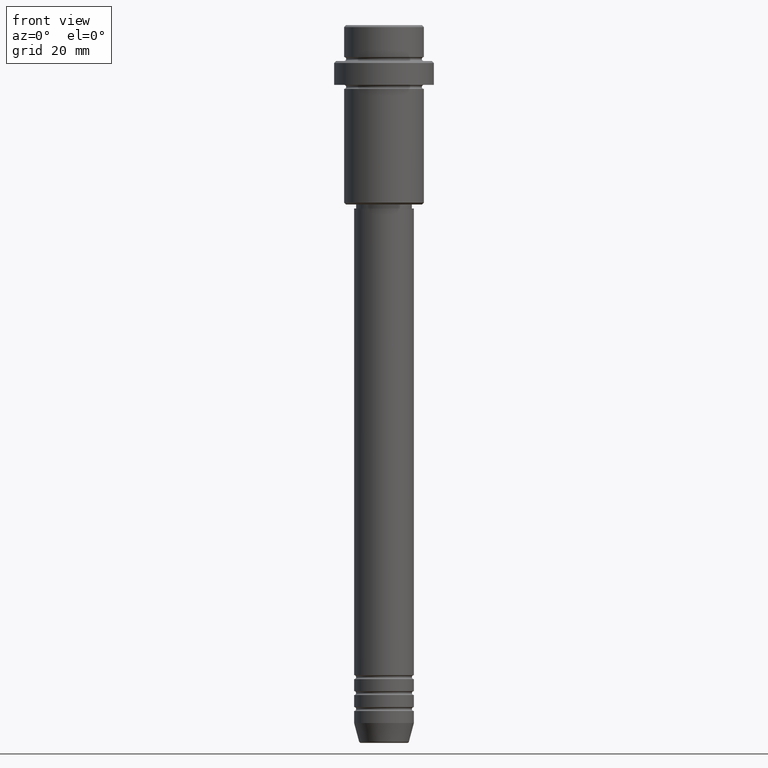
[diagram: clean part render]
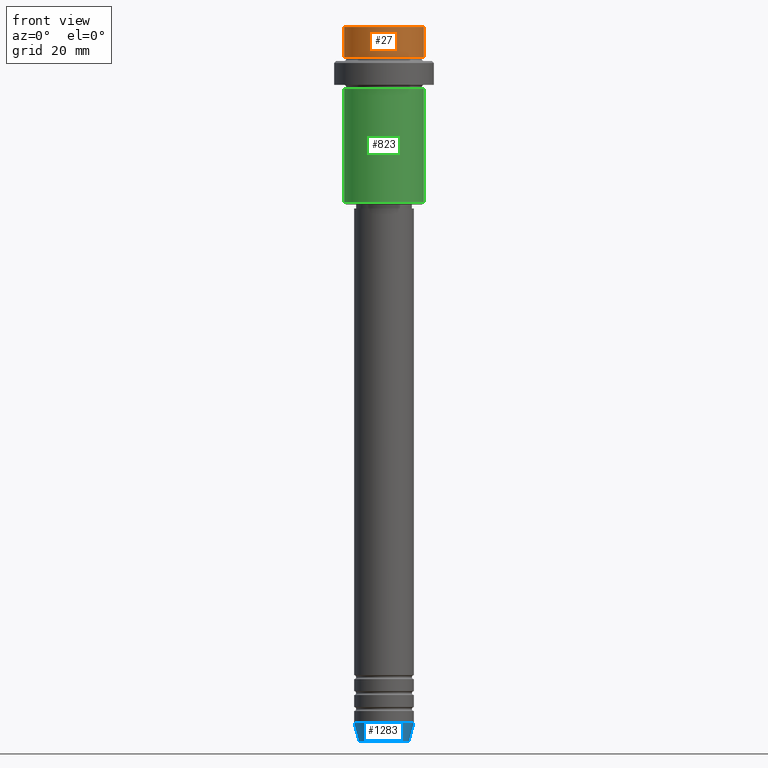
[diagram: same view with three faces highlighted in distinct colors, each labeled with its STEP entity id]
A machine part, front view with three faces highlighted in distinct colors.
Their STEP definitions:

[orange] entity #27 — the highlighted cylindrical surface (partial cylindrical patch) has radius 10 mm, axis along (-0, -0, 1).
#14 = VERTEX_POINT ( 'NONE', #324 ) ;
#27 = ADVANCED_FACE ( 'NONE', ( #239 ), #1329, .T. ) ;
#64 = CARTESIAN_POINT ( 'NONE',  ( -9.999999999999998224, 1.224646799147353059E-15, 0.000000000000000000 ) ) ;
#78 = VERTEX_POINT ( 'NONE', #889 ) ;
#196 = VECTOR ( 'NONE', #279, 1000.000000000000000 ) ;
#206 = VERTEX_POINT ( 'NONE', #568 ) ;
#219 = DIRECTION ( 'NONE',  ( -0.000000000000000000, -0.000000000000000000, 1.000000000000000000 ) ) ;
#239 = FACE_OUTER_BOUND ( 'NONE', #1240, .T. ) ;
#279 = DIRECTION ( 'NONE',  ( -0.000000000000000000, -0.000000000000000000, 1.000000000000000000 ) ) ;
#324 = CARTESIAN_POINT ( 'NONE',  ( 9.999999999999998224, 0.000000000000000000, -7.999999999999998224 ) ) ;
#395 = CARTESIAN_POINT ( 'NONE',  ( 0.000000000000000000, 0.000000000000000000, -7.999999999999998224 ) ) ;
#430 = EDGE_CURVE ( 'NONE', #465, #78, #854, .T. ) ;
#442 = CARTESIAN_POINT ( 'NONE',  ( 0.000000000000000000, 0.000000000000000000, 0.000000000000000000 ) ) ;
#465 = VERTEX_POINT ( 'NONE', #548 ) ;
#496 = LINE ( 'NONE', #1036, #692 ) ;
#548 = CARTESIAN_POINT ( 'NONE',  ( 9.999999999999998224, 0.000000000000000000, -0.4999999999999970024 ) ) ;
#550 = AXIS2_PLACEMENT_3D ( 'NONE', #442, #219, #672 ) ;
#568 = CARTESIAN_POINT ( 'NONE',  ( -9.999999999999998224, 1.224646799147353059E-15, -7.999999999999998224 ) ) ;
#601 = DIRECTION ( 'NONE',  ( 1.000000000000000000, 0.000000000000000000, 0.000000000000000000 ) ) ;
#650 = EDGE_CURVE ( 'NONE', #206, #78, #1180, .T. ) ;
#670 = DIRECTION ( 'NONE',  ( 1.000000000000000000, 0.000000000000000000, 0.000000000000000000 ) ) ;
#672 = DIRECTION ( 'NONE',  ( 1.000000000000000000, 0.000000000000000000, 0.000000000000000000 ) ) ;
#692 = VECTOR ( 'NONE', #1044, 1000.000000000000000 ) ;
#707 = DIRECTION ( 'NONE',  ( -0.000000000000000000, -0.000000000000000000, 1.000000000000000000 ) ) ;
#744 = CIRCLE ( 'NONE', #1198, 9.999999999999998224 ) ;
#842 = ORIENTED_EDGE ( 'NONE', *, *, #1262, .T. ) ;
#854 = CIRCLE ( 'NONE', #1082, 9.999999999999998224 ) ;
#860 = DIRECTION ( 'NONE',  ( 0.000000000000000000, 0.000000000000000000, -1.000000000000000000 ) ) ;
#889 = CARTESIAN_POINT ( 'NONE',  ( -9.999999999999998224, 1.224646799147353059E-15, -0.4999999999999970024 ) ) ;
#1036 = CARTESIAN_POINT ( 'NONE',  ( 9.999999999999998224, 0.000000000000000000, 0.000000000000000000 ) ) ;
#1044 = DIRECTION ( 'NONE',  ( -0.000000000000000000, -0.000000000000000000, 1.000000000000000000 ) ) ;
#1082 = AXIS2_PLACEMENT_3D ( 'NONE', #1301, #860, #670 ) ;
#1180 = LINE ( 'NONE', #64, #196 ) ;
#1198 = AXIS2_PLACEMENT_3D ( 'NONE', #395, #707, #601 ) ;
#1235 = ORIENTED_EDGE ( 'NONE', *, *, #430, .T. ) ;
#1240 = EDGE_LOOP ( 'NONE', ( #1407, #842, #1318, #1235 ) ) ;
#1262 = EDGE_CURVE ( 'NONE', #206, #14, #744, .T. ) ;
#1301 = CARTESIAN_POINT ( 'NONE',  ( 0.000000000000000000, 0.000000000000000000, -0.4999999999999970024 ) ) ;
#1318 = ORIENTED_EDGE ( 'NONE', *, *, #1397, .T. ) ;
#1329 = CYLINDRICAL_SURFACE ( 'NONE', #550, 9.999999999999998224 ) ;
#1397 = EDGE_CURVE ( 'NONE', #14, #465, #496, .T. ) ;
#1407 = ORIENTED_EDGE ( 'NONE', *, *, #650, .F. ) ;

[blue] entity #1283 — the highlighted conical surface has half-angle 15 deg.
#41 = DIRECTION ( 'NONE',  ( 0.2588190451025227379, 0.000000000000000000, 0.9659258262890676461 ) ) ;
#47 = DIRECTION ( 'NONE',  ( 1.000000000000000000, 0.000000000000000000, 0.000000000000000000 ) ) ;
#83 = CARTESIAN_POINT ( 'NONE',  ( -7.500000000000000000, 9.184850993605147944E-16, -175.0000000000000284 ) ) ;
#148 = CARTESIAN_POINT ( 'NONE',  ( 0.000000000000000000, 0.000000000000000000, -175.0000000000000284 ) ) ;
#195 = VERTEX_POINT ( 'NONE', #582 ) ;
#222 = VERTEX_POINT ( 'NONE', #474 ) ;
#244 = CARTESIAN_POINT ( 'NONE',  ( 7.500000000000000000, 0.000000000000000000, -175.0000000000000284 ) ) ;
#297 = LINE ( 'NONE', #83, #349 ) ;
#333 = AXIS2_PLACEMENT_3D ( 'NONE', #813, #695, #1259 ) ;
#349 = VECTOR ( 'NONE', #722, 1000.000000000000114 ) ;
#357 = EDGE_CURVE ( 'NONE', #952, #425, #297, .T. ) ;
#423 = AXIS2_PLACEMENT_3D ( 'NONE', #1178, #1400, #1071 ) ;
#425 = VERTEX_POINT ( 'NONE', #441 ) ;
#429 = ORIENTED_EDGE ( 'NONE', *, *, #527, .T. ) ;
#441 = CARTESIAN_POINT ( 'NONE',  ( -7.500000000000000000, 9.184850993605147944E-16, -175.0000000000000284 ) ) ;
#474 = CARTESIAN_POINT ( 'NONE',  ( 6.259553456999435106, 0.000000000000000000, -179.6294095225512706 ) ) ;
#484 = CIRCLE ( 'NONE', #1173, 7.500000000000000000 ) ;
#527 = EDGE_CURVE ( 'NONE', #222, #195, #911, .T. ) ;
#538 = CONICAL_SURFACE ( 'NONE', #423, 7.500000000000000000, 0.2617993877991514617 ) ;
#559 = EDGE_CURVE ( 'NONE', #425, #195, #484, .T. ) ;
#570 = ORIENTED_EDGE ( 'NONE', *, *, #559, .F. ) ;
#582 = CARTESIAN_POINT ( 'NONE',  ( 7.500000000000000000, 0.000000000000000000, -175.0000000000000284 ) ) ;
#616 = ORIENTED_EDGE ( 'NONE', *, *, #1308, .T. ) ;
#694 = DIRECTION ( 'NONE',  ( -0.000000000000000000, -0.000000000000000000, 1.000000000000000000 ) ) ;
#695 = DIRECTION ( 'NONE',  ( -0.000000000000000000, -0.000000000000000000, 1.000000000000000000 ) ) ;
#722 = DIRECTION ( 'NONE',  ( -0.2588190451025227379, 3.169619151431788361E-17, 0.9659258262890676461 ) ) ;
#797 = CARTESIAN_POINT ( 'NONE',  ( -6.259553456999435106, 8.425296549405626528E-16, -179.6294095225512706 ) ) ;
#806 = CIRCLE ( 'NONE', #333, 6.259553456999435106 ) ;
#813 = CARTESIAN_POINT ( 'NONE',  ( 0.000000000000000000, 0.000000000000000000, -179.6294095225512706 ) ) ;
#830 = VECTOR ( 'NONE', #41, 1000.000000000000114 ) ;
#840 = EDGE_LOOP ( 'NONE', ( #957, #616, #429, #570 ) ) ;
#911 = LINE ( 'NONE', #244, #830 ) ;
#952 = VERTEX_POINT ( 'NONE', #797 ) ;
#957 = ORIENTED_EDGE ( 'NONE', *, *, #357, .F. ) ;
#961 = FACE_OUTER_BOUND ( 'NONE', #840, .T. ) ;
#1071 = DIRECTION ( 'NONE',  ( 1.000000000000000000, 0.000000000000000000, 0.000000000000000000 ) ) ;
#1173 = AXIS2_PLACEMENT_3D ( 'NONE', #148, #694, #47 ) ;
#1178 = CARTESIAN_POINT ( 'NONE',  ( 0.000000000000000000, 0.000000000000000000, -175.0000000000000284 ) ) ;
#1259 = DIRECTION ( 'NONE',  ( 1.000000000000000000, 0.000000000000000000, 0.000000000000000000 ) ) ;
#1283 = ADVANCED_FACE ( 'NONE', ( #961 ), #538, .T. ) ;
#1308 = EDGE_CURVE ( 'NONE', #952, #222, #806, .T. ) ;
#1400 = DIRECTION ( 'NONE',  ( -0.000000000000000000, -0.000000000000000000, 1.000000000000000000 ) ) ;

[green] entity #823 — the highlighted cylindrical surface (partial cylindrical patch) has radius 10 mm, axis along (-0, -0, 1).
#16 = FACE_OUTER_BOUND ( 'NONE', #1322, .T. ) ;
#20 = CARTESIAN_POINT ( 'NONE',  ( 10.00000000000000000, 0.000000000000000000, 0.000000000000000000 ) ) ;
#36 = CARTESIAN_POINT ( 'NONE',  ( 0.000000000000000000, 0.000000000000000000, -16.00000000000000000 ) ) ;
#111 = ORIENTED_EDGE ( 'NONE', *, *, #988, .F. ) ;
#150 = CARTESIAN_POINT ( 'NONE',  ( -10.00000000000000000, 1.224646799147353256E-15, -44.50000000000000711 ) ) ;
#184 = VERTEX_POINT ( 'NONE', #150 ) ;
#235 = LINE ( 'NONE', #20, #577 ) ;
#271 = VERTEX_POINT ( 'NONE', #1287 ) ;
#285 = VERTEX_POINT ( 'NONE', #408 ) ;
#408 = CARTESIAN_POINT ( 'NONE',  ( 10.00000000000000000, 0.000000000000000000, -44.50000000000000711 ) ) ;
#439 = DIRECTION ( 'NONE',  ( 1.000000000000000000, 0.000000000000000000, 0.000000000000000000 ) ) ;
#444 = CIRCLE ( 'NONE', #631, 10.00000000000000000 ) ;
#446 = DIRECTION ( 'NONE',  ( -0.000000000000000000, -0.000000000000000000, 1.000000000000000000 ) ) ;
#483 = ORIENTED_EDGE ( 'NONE', *, *, #1070, .T. ) ;
#485 = VECTOR ( 'NONE', #1238, 1000.000000000000000 ) ;
#561 = ORIENTED_EDGE ( 'NONE', *, *, #1340, .F. ) ;
#577 = VECTOR ( 'NONE', #678, 1000.000000000000000 ) ;
#631 = AXIS2_PLACEMENT_3D ( 'NONE', #716, #817, #1256 ) ;
#655 = CARTESIAN_POINT ( 'NONE',  ( 0.000000000000000000, 0.000000000000000000, 0.000000000000000000 ) ) ;
#678 = DIRECTION ( 'NONE',  ( -0.000000000000000000, -0.000000000000000000, 1.000000000000000000 ) ) ;
#716 = CARTESIAN_POINT ( 'NONE',  ( 0.000000000000000000, 0.000000000000000000, -44.50000000000000711 ) ) ;
#738 = ORIENTED_EDGE ( 'NONE', *, *, #1254, .T. ) ;
#817 = DIRECTION ( 'NONE',  ( -0.000000000000000000, -0.000000000000000000, 1.000000000000000000 ) ) ;
#823 = ADVANCED_FACE ( 'NONE', ( #16 ), #864, .T. ) ;
#855 = AXIS2_PLACEMENT_3D ( 'NONE', #655, #446, #439 ) ;
#864 = CYLINDRICAL_SURFACE ( 'NONE', #855, 10.00000000000000000 ) ;
#921 = DIRECTION ( 'NONE',  ( -0.000000000000000000, -0.000000000000000000, 1.000000000000000000 ) ) ;
#988 = EDGE_CURVE ( 'NONE', #184, #1117, #1336, .T. ) ;
#1064 = CARTESIAN_POINT ( 'NONE',  ( -10.00000000000000000, 1.224646799147353256E-15, -16.00000000000000000 ) ) ;
#1070 = EDGE_CURVE ( 'NONE', #285, #271, #235, .T. ) ;
#1105 = CARTESIAN_POINT ( 'NONE',  ( -10.00000000000000000, 1.224646799147353256E-15, 0.000000000000000000 ) ) ;
#1117 = VERTEX_POINT ( 'NONE', #1064 ) ;
#1134 = DIRECTION ( 'NONE',  ( 1.000000000000000000, 0.000000000000000000, 0.000000000000000000 ) ) ;
#1238 = DIRECTION ( 'NONE',  ( -0.000000000000000000, -0.000000000000000000, 1.000000000000000000 ) ) ;
#1243 = AXIS2_PLACEMENT_3D ( 'NONE', #36, #921, #1134 ) ;
#1254 = EDGE_CURVE ( 'NONE', #184, #285, #444, .T. ) ;
#1256 = DIRECTION ( 'NONE',  ( -1.000000000000000000, 0.000000000000000000, 0.000000000000000000 ) ) ;
#1287 = CARTESIAN_POINT ( 'NONE',  ( 10.00000000000000000, 0.000000000000000000, -16.00000000000000000 ) ) ;
#1322 = EDGE_LOOP ( 'NONE', ( #111, #738, #483, #561 ) ) ;
#1336 = LINE ( 'NONE', #1105, #485 ) ;
#1338 = CIRCLE ( 'NONE', #1243, 10.00000000000000000 ) ;
#1340 = EDGE_CURVE ( 'NONE', #1117, #271, #1338, .T. ) ;